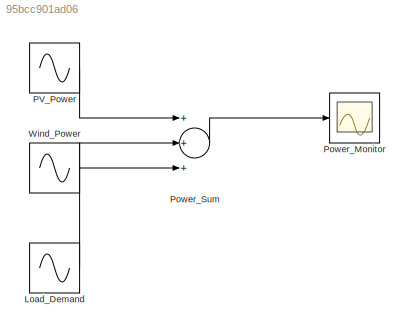
MODEL slx_95bcc901ad06
KIND model
CONFIG AbsTol = auto
CONFIG EnableMultiTasking = off
CONFIG FixedStep = 1
CONFIG MaxStep = auto
CONFIG MinStep = auto
CONFIG RelTol = 1e-3
CONFIG SampleTimeConstraint = Unconstrained
CONFIG SolverName = ode4
CONFIG StartTime = 0.0
CONFIG StopTime = 86400
BLOCK [Sin] Load_Demand
  Amplitude = 35000
  Bias = 35000
  Frequency = 1/43200
  Ports = [0, 1]
  SampleTime = 0
BLOCK [Sin] PV_Power
  Amplitude = 50000
  Bias = 30000
  Frequency = 1/86400
  Ports = [0, 1]
  SampleTime = 0
BLOCK [Scope] Power_Monitor
  Floating = off
  NumInputPorts = 1
  Ports = [1]
BLOCK [Sum] Power_Sum
  Inputs = +++
  Ports = [3, 1]
BLOCK [Sin] Wind_Power
  Amplitude = 15000
  Bias = 20000
  Frequency = 2/86400
  Ports = [0, 1]
  SampleTime = 0
LINE Load_Demand:1 -> Power_Sum:3
LINE PV_Power:1 -> Power_Sum:1
LINE Power_Sum:1 -> Power_Monitor:1
LINE Wind_Power:1 -> Power_Sum:2
